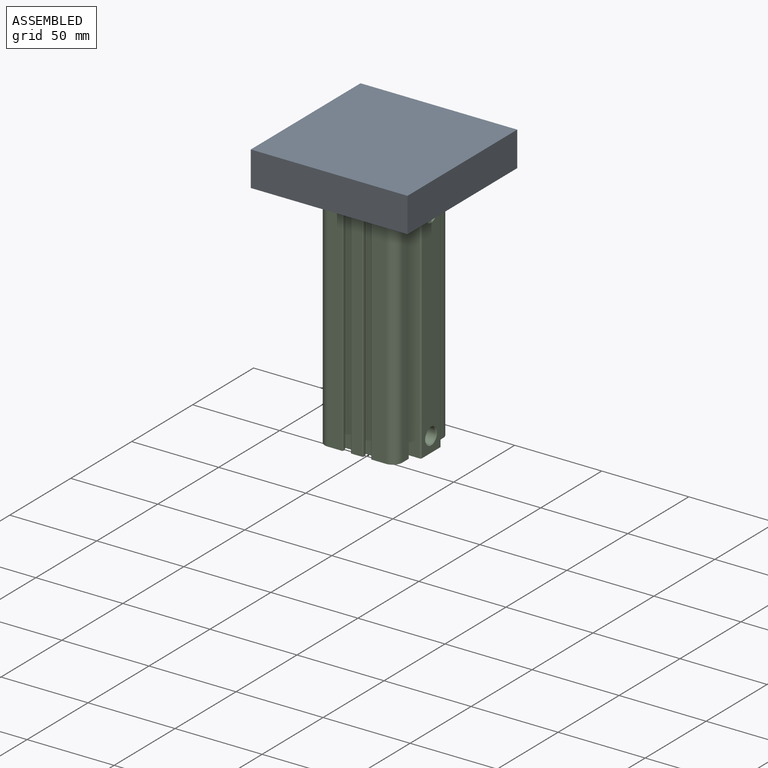
[diagram: assembled view]
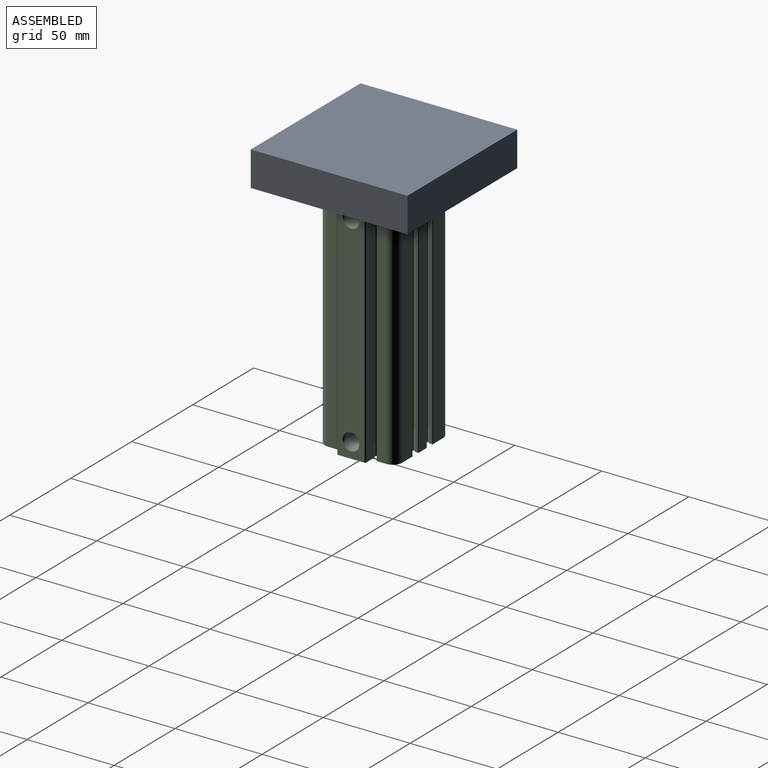
[diagram: assembled view, second angle]
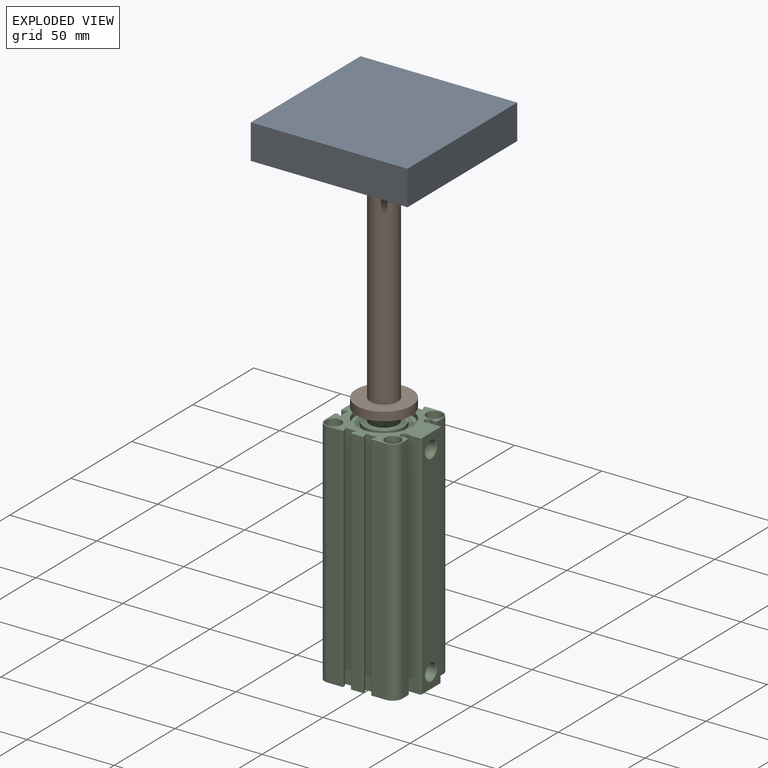
[diagram: exploded view]
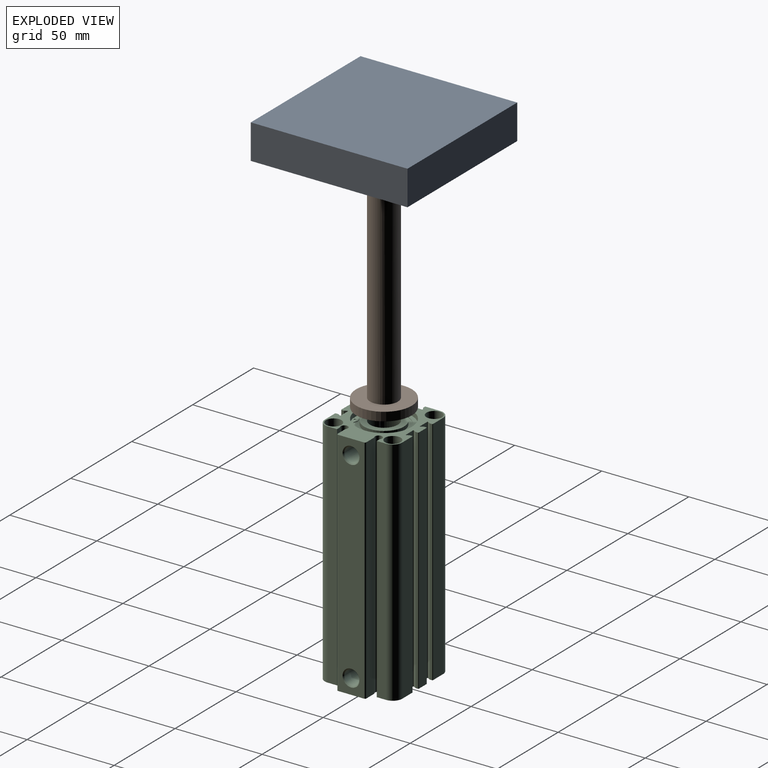
[diagram: exploded view, second angle]
ASSEMBLY  parts=3 mates=2
PART A: 16 faces, bbox 20x90x90 mm
  f0: plane 90x90mm, normal (1,0,0), area 7902.7mm2, adj f1,f2,f3,f4,f6,f7,f10,f12
  f1: plane 90x20mm, normal (0,0,1), area 1800mm2, adj f0,f2,f3,f5
  f2: plane 90x20mm, normal (0,-1,0), area 1800mm2, adj f0,f1,f4,f5
  f3: plane 90x20mm, normal (0,1,0), area 1800mm2, adj f0,f1,f4,f5
  f4: plane 90x20mm, normal (0,0,-1), area 1800mm2, adj f0,f2,f3,f5
  f5: plane 90x90mm, normal (-1,0,0), area 8100mm2, adj f1,f2,f3,f4
  f6: cylinder r=8mm len=15mm, axis (1,0,0), area 121.3mm2, adj f0,f9,f10,f11,f12,f13
  f7: cylinder r=8mm len=15mm, axis (1,0,0), area 121.3mm2, adj f0,f9,f10,f11,f12,f13
  f8: cylinder r=3.32mm len=6.65mm, axis (1,0,0), area 134.1mm2, adj f14,f15
  f9: plane 16x14mm, normal (1,0,0), area 140.3mm2, adj f6,f7,f11,f13,f14
  f10: cylinder r=0.5mm len=7.75mm, axis (0,-1,0), area 5.5mm2, adj f0,f6,f7,f11
  f11: plane 7.75x6.6mm, normal (0,0,1), area 51.1mm2, adj f6,f7,f9,f10
  f12: cylinder r=0.5mm len=7.75mm, axis (0,-1,0), area 5.5mm2, adj f0,f6,f7,f13
  f13: plane 7.75x6.6mm, normal (0,0,-1), area 51.1mm2, adj f6,f7,f9,f12
  f14: cone r=4mm half-angle=45deg, axis (-1,0,0), area 22mm2, adj f8,f9
  f15: plane 6.65x6.65mm, normal (1,0,0), area 34.7mm2, adj f8
PART B: 14 faces, bbox 126x32x32 mm
  f0: plane 16x14mm, normal (-1,0,0), area 140.3mm2, adj f1,f7,f10,f11
  f1: cylinder r=8mm len=121mm, axis (1,0,0), area 5967.8mm2, adj f0,f2,f5,f6,f7,f8,f9,f10
  f2: plane 32x32mm, normal (-1,0,0), area 603.2mm2, adj f1,f3
  f3: cylinder r=16mm len=32mm, axis (1,0,0), area 502.7mm2, adj f2,f4
  f4: plane 32x32mm, normal (1,0,0), area 804.2mm2, adj f3
  f5: plane 5.57x0.5mm, normal (-1,0,0), area 1.9mm2, adj f1,f6
  f6: cylinder r=0.5mm len=7.75mm, axis (0,-1,0), area 5.5mm2, adj f1,f5,f7
  f7: plane 7.75x6.6mm, normal (0,0,-1), area 51.1mm2, adj f0,f1,f6
  f8: plane 5.57x0.5mm, normal (-1,0,0), area 1.9mm2, adj f1,f9
  f9: cylinder r=0.5mm len=7.75mm, axis (0,-1,0), area 5.5mm2, adj f1,f8,f10
  f10: plane 7.75x6.6mm, normal (0,0,1), area 51.1mm2, adj f0,f1,f9
  f11: cone r=4mm half-angle=45deg, axis (-1,0,0), area 22mm2, adj f0,f12
  f12: cylinder r=3.32mm len=13.72mm, axis (1,0,0), area 286.6mm2, adj f11,f13
  f13: cone r=3.32mm half-angle=60deg, axis (-1,0,0), area 40.1mm2, adj f12
PART C: 166 faces, bbox 49.3x44.5x133 mm
  f0: cylinder r=4.28mm len=13.67mm, axis (1,0,0), area 367.1mm2, adj f162,f163,f165
  f1: cylinder r=4.28mm len=13.67mm, axis (1,0,0), area 367.1mm2, adj f160,f161,f164
  f2: cylinder r=16mm len=32mm, axis (0,0,-1), area 277.9mm2, adj f82,f83,f104,f105,f106
  f3: cylinder r=5.51mm len=133mm, axis (0,0,1), area 1151.1mm2, adj f4,f80,f81,f82
  f4: plane 133x8.26mm, normal (-1,0,0), area 1098.6mm2, adj f3,f5,f81,f82
  f5: cylinder r=0.38mm len=133mm, axis (0,0,1), area 79.4mm2, adj f4,f6,f81,f82
  f6: plane 133x1.3mm, normal (0,-1,0), area 172.9mm2, adj f5,f7,f81,f82
  f7: plane 133x1.53mm, normal (0.5,-0.87,0), area 234.2mm2, adj f6,f8,f81,f82
  f8: cylinder r=0.25mm len=133mm, axis (0,0,1), area 69.6mm2, adj f7,f9,f81,f82
  f9: plane 133x5.9mm, normal (-1,0,0), area 784.4mm2, adj f8,f10,f81,f82
  f10: cylinder r=0.25mm len=133mm, axis (0,0,1), area 69.6mm2, adj f9,f11,f81,f82
  f11: plane 133x1.53mm, normal (0.5,0.87,0), area 234.2mm2, adj f10,f12,f81,f82
  f12: plane 133x1.3mm, normal (0,1,0), area 172.9mm2, adj f11,f13,f81,f82
  f13: cylinder r=0.38mm len=133mm, axis (0,0,1), area 79.4mm2, adj f12,f14,f81,f82
  f14: plane 133x6.3mm, normal (-1,0,0), area 837.9mm2, adj f13,f15,f81,f82
  f15: cylinder r=0.38mm len=133mm, axis (0,0,1), area 79.4mm2, adj f14,f16,f81,f82
  f16: plane 133x1.3mm, normal (0,-1,0), area 172.9mm2, adj f15,f17,f81,f82
  f17: plane 133x1.53mm, normal (0.5,-0.87,0), area 234.2mm2, adj f16,f18,f81,f82
  f18: cylinder r=0.25mm len=133mm, axis (0,0,1), area 69.6mm2, adj f17,f19,f81,f82
  f19: plane 133x5.9mm, normal (-1,0,0), area 784.4mm2, adj f18,f20,f81,f82
  f20: cylinder r=0.25mm len=133mm, axis (0,0,1), area 69.6mm2, adj f19,f21,f81,f82
  f21: plane 133x1.53mm, normal (0.5,0.87,0), area 234.2mm2, adj f20,f22,f81,f82
  f22: plane 133x1.3mm, normal (0,1,0), area 172.9mm2, adj f21,f23,f81,f82
  f23: cylinder r=0.38mm len=133mm, axis (0,0,1), area 79.4mm2, adj f22,f24,f81,f82
  f24: plane 133x8.26mm, normal (-1,0,0), area 1098.6mm2, adj f23,f25,f81,f82
  f25: cylinder r=5.51mm len=133mm, axis (0,0,1), area 1151.1mm2, adj f24,f26,f81,f82
  f26: plane 133x8.26mm, normal (0,-1,0), area 1098.6mm2, adj f25,f27,f81,f82
  f27: cylinder r=0.38mm len=133mm, axis (0,0,1), area 79.4mm2, adj f26,f28,f81,f82
  f28: plane 133x1.3mm, normal (1,0,0), area 172.9mm2, adj f27,f29,f81,f82
  f29: plane 133x1.53mm, normal (0.87,0.5,0), area 234.2mm2, adj f28,f30,f81,f82
  f30: cylinder r=0.25mm len=133mm, axis (0,0,1), area 69.6mm2, adj f29,f31,f81,f82
  f31: plane 133x5.9mm, normal (0,-1,0), area 784.4mm2, adj f30,f32,f81,f82
  f32: cylinder r=0.25mm len=133mm, axis (0,0,1), area 69.6mm2, adj f31,f33,f81,f82
  f33: plane 133x1.53mm, normal (-0.87,0.5,0), area 234.2mm2, adj f32,f34,f81,f82
  f34: plane 133x1.3mm, normal (-1,0,0), area 172.9mm2, adj f33,f35,f81,f82
  f35: cylinder r=0.38mm len=133mm, axis (0,0,1), area 79.4mm2, adj f34,f36,f81,f82
  f36: plane 133x6.3mm, normal (0,-1,0), area 837.9mm2, adj f35,f37,f81,f82
  f37: cylinder r=0.38mm len=133mm, axis (0,0,1), area 79.4mm2, adj f36,f38,f81,f82
  f38: plane 133x1.3mm, normal (1,0,0), area 172.9mm2, adj f37,f39,f81,f82
  f39: plane 133x1.53mm, normal (0.87,0.5,0), area 234.2mm2, adj f38,f40,f81,f82
  f40: cylinder r=0.25mm len=133mm, axis (0,0,1), area 69.6mm2, adj f39,f41,f81,f82
  f41: plane 133x5.9mm, normal (0,-1,0), area 784.4mm2, adj f40,f42,f81,f82
  f42: cylinder r=0.25mm len=133mm, axis (0,0,1), area 69.6mm2, adj f41,f43,f81,f82
  f43: plane 133x1.53mm, normal (-0.87,0.5,0), area 234.2mm2, adj f42,f44,f81,f82
  f44: plane 133x1.3mm, normal (-1,0,0), area 172.9mm2, adj f43,f45,f81,f82
  f45: cylinder r=0.38mm len=133mm, axis (0,0,1), area 79.4mm2, adj f44,f46,f81,f82
  f46: plane 133x8.26mm, normal (0,-1,0), area 1098.6mm2, adj f45,f47,f81,f82
  f47: cylinder r=5.51mm len=133mm, axis (0,0,1), area 1151.1mm2, adj f46,f48,f81,f82
  f48: plane 133x5.31mm, normal (1,0,0), area 705.6mm2, adj f47,f49,f81,f82
  f49: plane 133x2.46mm, normal (0,1,0), area 327mm2, adj f48,f50,f81,f82
  f50: cylinder r=2.07mm len=133mm, axis (0,0,1), area 1247.5mm2, adj f49,f51,f81,f82
  f51: plane 133x6.48mm, normal (0,-1,0), area 861.9mm2, adj f50,f52,f81,f82
  f52: cylinder r=0.79mm len=133mm, axis (0,0,1), area 165mm2, adj f51,f53,f81,f82
  f53: plane 133x14.93mm, normal (1,0,0), area 1837mm2, adj f52,f54,f81,f82,f161,f163
  f54: cylinder r=0.79mm len=133mm, axis (0,0,1), area 165mm2, adj f53,f55,f81,f82
  f55: plane 133x6.48mm, normal (0,1,0), area 861.9mm2, adj f54,f56,f81,f82
  f56: cylinder r=2.07mm len=133mm, axis (0,0,1), area 1247.5mm2, adj f55,f57,f81,f82
  f57: plane 133x2.46mm, normal (0,-1,0), area 327mm2, adj f56,f58,f81,f82
  f58: plane 133x5.31mm, normal (1,0,0), area 705.6mm2, adj f57,f59,f81,f82
  f59: cylinder r=5.51mm len=133mm, axis (0,0,1), area 1151.1mm2, adj f58,f60,f81,f82
  f60: plane 133x8.26mm, normal (0,1,0), area 1098.6mm2, adj f59,f61,f81,f82
  f61: cylinder r=0.38mm len=133mm, axis (0,0,1), area 79.4mm2, adj f60,f62,f81,f82
  f62: plane 133x1.3mm, normal (-1,0,0), area 172.9mm2, adj f61,f63,f81,f82
  f63: plane 133x1.53mm, normal (-0.87,-0.5,0), area 234.2mm2, adj f62,f64,f81,f82
  f64: cylinder r=0.25mm len=133mm, axis (0,0,1), area 69.6mm2, adj f63,f65,f81,f82
  f65: plane 133x5.9mm, normal (0,1,0), area 784.4mm2, adj f64,f66,f81,f82
  f66: cylinder r=0.25mm len=133mm, axis (0,0,1), area 69.6mm2, adj f65,f67,f81,f82
  f67: plane 133x1.53mm, normal (0.87,-0.5,0), area 234.2mm2, adj f66,f68,f81,f82
  f68: plane 133x1.3mm, normal (1,0,0), area 172.9mm2, adj f67,f69,f81,f82
  f69: cylinder r=0.38mm len=133mm, axis (0,0,1), area 79.4mm2, adj f68,f70,f81,f82
  f70: plane 133x6.3mm, normal (0,1,0), area 837.9mm2, adj f69,f71,f81,f82
  f71: cylinder r=0.38mm len=133mm, axis (0,0,1), area 79.4mm2, adj f70,f72,f81,f82
  f72: plane 133x1.3mm, normal (-1,0,0), area 172.9mm2, adj f71,f73,f81,f82
  f73: plane 133x1.53mm, normal (-0.87,-0.5,0), area 234.2mm2, adj f72,f74,f81,f82
  f74: cylinder r=0.25mm len=133mm, axis (0,0,1), area 69.6mm2, adj f73,f75,f81,f82
  f75: plane 133x5.9mm, normal (0,1,0), area 784.4mm2, adj f74,f76,f81,f82
  f76: cylinder r=0.25mm len=133mm, axis (0,0,1), area 69.6mm2, adj f75,f77,f81,f82
  f77: plane 133x1.53mm, normal (0.87,-0.5,0), area 234.2mm2, adj f76,f78,f81,f82
  f78: plane 133x1.3mm, normal (1,0,0), area 172.9mm2, adj f77,f79,f81,f82
  f79: cylinder r=0.38mm len=133mm, axis (0,0,1), area 79.4mm2, adj f78,f80,f81,f82
  f80: plane 133x8.26mm, normal (0,1,0), area 1098.6mm2, adj f3,f79,f81,f82
  f81: plane 49.3x44.5mm, normal (0,0,-1), area 824.6mm2, adj f3,f4,f5,f6,f7,f8,f9,f10
  f82: plane 49.3x44.5mm, normal (0,0,1), area 824.6mm2, adj f2,f3,f4,f5,f6,f7,f8,f9
  f83: plane 29.47x28mm, normal (0,0,1), area 196.7mm2, adj f2,f84,f105,f106,f107,f108,f109,f110
  f84: cylinder r=11.5mm len=23mm, axis (0,0,-1), area 144.5mm2, adj f83,f85
  f85: plane 23x23mm, normal (0,0,1), area 214.4mm2, adj f84,f86
  f86: cylinder r=8mm len=16mm, axis (0,0,-1), area 653.5mm2, adj f85,f87
  f87: plane 32x32mm, normal (0,0,-1), area 602.4mm2, adj f86,f88,f164
  f88: cylinder r=16mm len=105mm, axis (0,0,-1), area 10555.8mm2, adj f87,f89
  f89: plane 32x32mm, normal (0,0,1), area 803.5mm2, adj f88,f165
  f90: plane 29.47x28mm, normal (0,0,-1), area 612.2mm2, adj f91,f93,f94,f95,f96,f97,f98,f101
  f91: cylinder r=16mm len=32mm, axis (0,0,-1), area 277.9mm2, adj f81,f90,f92,f93,f94
  f92: plane 32x31.76mm, normal (0,0,-1), area 189.5mm2, adj f91,f93,f94,f95,f96,f97,f98,f99
  f93: plane 3.15x0.56mm, normal (-0.98,-0.17,0), area 0.8mm2, adj f90,f91,f92,f101
  f94: plane 3.15x0.56mm, normal (0.98,-0.17,0), area 0.8mm2, adj f90,f91,f92,f95
  f95: cylinder r=12.8mm len=2.16mm, axis (0,0,1), area 0.6mm2, adj f90,f92,f94,f96
  f96: plane 2.27x0.83mm, normal (-0.34,0.94,0), area 0.6mm2, adj f90,f92,f95,f97
  f97: cylinder r=14mm len=28mm, axis (0,0,1), area 18.5mm2, adj f90,f92,f96,f98
  f98: plane 2.27x0.83mm, normal (0.34,0.94,0), area 0.6mm2, adj f90,f92,f97,f101
  f99: cylinder r=0.64mm len=1.28mm, axis (0,0,1), area 1mm2, adj f92,f103
  f100: cylinder r=0.64mm len=1.28mm, axis (0,0,1), area 1mm2, adj f92,f102
  f101: cylinder r=12.8mm len=2.16mm, axis (0,0,1), area 0.6mm2, adj f90,f92,f93,f98
  f102: plane 1.28x1.28mm, normal (0,0,-1), area 1.3mm2, adj f100
  f103: plane 1.28x1.28mm, normal (0,0,-1), area 1.3mm2, adj f99
  f104: plane 32x31.76mm, normal (0,0,1), area 189.5mm2, adj f2,f105,f106,f107,f108,f109,f110,f111
  f105: plane 3.15x0.56mm, normal (-0.98,-0.17,0), area 0.8mm2, adj f2,f83,f104,f113
  f106: plane 3.15x0.56mm, normal (0.98,-0.17,0), area 0.8mm2, adj f2,f83,f104,f107
  f107: cylinder r=12.8mm len=2.16mm, axis (0,0,-1), area 0.6mm2, adj f83,f104,f106,f108
  f108: plane 2.27x0.83mm, normal (-0.34,0.94,0), area 0.6mm2, adj f83,f104,f107,f109
  f109: cylinder r=14mm len=28mm, axis (0,0,-1), area 18.5mm2, adj f83,f104,f108,f110
  f110: plane 2.27x0.83mm, normal (0.34,0.94,0), area 0.6mm2, adj f83,f104,f109,f113
  f111: cylinder r=0.64mm len=1.28mm, axis (0,0,-1), area 1mm2, adj f104,f115
  f112: cylinder r=0.64mm len=1.28mm, axis (0,0,-1), area 1mm2, adj f104,f114
  f113: cylinder r=12.8mm len=2.16mm, axis (0,0,-1), area 0.6mm2, adj f83,f104,f105,f110
  f114: plane 1.28x1.28mm, normal (0,0,1), area 1.3mm2, adj f112
  f115: plane 1.28x1.28mm, normal (0,0,1), area 1.3mm2, adj f111
  f116: cylinder r=4.5mm len=9mm, axis (0,0,1), area 197.9mm2, adj f81,f117
  f117: plane 9x9mm, normal (0,0,-1), area 35.3mm2, adj f116,f118
  f118: cone r=3mm half-angle=45deg, axis (0,0,-1), area 13.1mm2, adj f117,f119
  f119: cylinder r=2.46mm len=9.54mm, axis (0,0,1), area 147.4mm2, adj f118,f120
  f120: plane 4.92x4.92mm, normal (0,0,-1), area 0.8mm2, adj f119,f121
  f121: cylinder r=2.41mm len=98.83mm, axis (0,0,1), area 1496.1mm2, adj f120,f122
  f122: plane 4.92x4.92mm, normal (0,0,1), area 0.8mm2, adj f121,f123
  f123: cylinder r=2.46mm len=9.54mm, axis (0,0,1), area 147.4mm2, adj f122,f124
  f124: cone r=2.46mm half-angle=45deg, axis (0,0,1), area 13.1mm2, adj f123,f125
  f125: plane 9x9mm, normal (0,0,1), area 35.3mm2, adj f124,f126
  f126: cylinder r=4.5mm len=9mm, axis (0,0,1), area 197.9mm2, adj f82,f125
  f127: cylinder r=4.5mm len=9mm, axis (0,0,-1), area 197.9mm2, adj f82,f128
  f128: plane 9x9mm, normal (0,0,1), area 35.3mm2, adj f127,f129
  f129: cone r=3mm half-angle=45deg, axis (0,0,1), area 13.1mm2, adj f128,f130
  f130: cylinder r=2.46mm len=9.54mm, axis (0,0,-1), area 147.4mm2, adj f129,f131
  f131: plane 4.92x4.92mm, normal (0,0,1), area 0.8mm2, adj f130,f132
  f132: cylinder r=2.41mm len=98.83mm, axis (0,0,-1), area 1496.1mm2, adj f131,f133
  f133: plane 4.92x4.92mm, normal (0,0,-1), area 0.8mm2, adj f132,f134
  f134: cylinder r=2.46mm len=9.54mm, axis (0,0,-1), area 147.4mm2, adj f133,f135
  f135: cone r=2.46mm half-angle=45deg, axis (0,0,-1), area 13.1mm2, adj f134,f136
  f136: plane 9x9mm, normal (0,0,-1), area 35.3mm2, adj f135,f137
  f137: cylinder r=4.5mm len=9mm, axis (0,0,-1), area 197.9mm2, adj f81,f136
  f138: cylinder r=4.5mm len=9mm, axis (0,0,-1), area 197.9mm2, adj f82,f139
  f139: plane 9x9mm, normal (0,0,1), area 35.3mm2, adj f138,f140
  f140: cone r=3mm half-angle=45deg, axis (0,0,1), area 13.1mm2, adj f139,f141
  f141: cylinder r=2.46mm len=9.54mm, axis (0,0,-1), area 147.4mm2, adj f140,f142
  f142: plane 4.92x4.92mm, normal (0,0,1), area 0.8mm2, adj f141,f143
  f143: cylinder r=2.41mm len=98.83mm, axis (0,0,-1), area 1496.1mm2, adj f142,f144
  f144: plane 4.92x4.92mm, normal (0,0,-1), area 0.8mm2, adj f143,f145
  f145: cylinder r=2.46mm len=9.54mm, axis (0,0,-1), area 147.4mm2, adj f144,f146
  f146: cone r=2.46mm half-angle=45deg, axis (0,0,-1), area 13.1mm2, adj f145,f147
  f147: plane 9x9mm, normal (0,0,-1), area 35.3mm2, adj f146,f148
  f148: cylinder r=4.5mm len=9mm, axis (0,0,-1), area 197.9mm2, adj f81,f147
  f149: cylinder r=4.5mm len=9mm, axis (0,0,1), area 197.9mm2, adj f81,f150
  f150: plane 9x9mm, normal (0,0,-1), area 35.3mm2, adj f149,f151
  f151: cone r=3mm half-angle=45deg, axis (0,0,-1), area 13.1mm2, adj f150,f152
  f152: cylinder r=2.46mm len=9.54mm, axis (0,0,1), area 147.4mm2, adj f151,f153
  f153: plane 4.92x4.92mm, normal (0,0,-1), area 0.8mm2, adj f152,f154
  f154: cylinder r=2.41mm len=98.83mm, axis (0,0,1), area 1496.1mm2, adj f153,f155
  f155: plane 4.92x4.92mm, normal (0,0,1), area 0.8mm2, adj f154,f156
  f156: cylinder r=2.46mm len=9.54mm, axis (0,0,1), area 147.4mm2, adj f155,f157
  f157: cone r=2.46mm half-angle=45deg, axis (0,0,1), area 13.1mm2, adj f156,f158
  f158: plane 9x9mm, normal (0,0,1), area 35.3mm2, adj f157,f159
  f159: cylinder r=4.5mm len=9mm, axis (0,0,1), area 197.9mm2, adj f82,f158
  f160: cone r=0mm half-angle=60deg, axis (1,0,0), area 66.5mm2, adj f1
  f161: cone r=4.28mm half-angle=45deg, axis (1,0,0), area 23.6mm2, adj f1,f53
  f162: cone r=0mm half-angle=60deg, axis (1,0,0), area 66.5mm2, adj f0
  f163: cone r=4.28mm half-angle=45deg, axis (1,0,0), area 23.6mm2, adj f0,f53
  f164: cylinder r=0.5mm len=1.05mm, axis (0,0,1), area 3.2mm2, adj f1,f87
  f165: cylinder r=0.5mm len=1.05mm, axis (0,0,1), area 3.2mm2, adj f0,f89
PLACE A rot(axis=(-0.58,0.58,0.58),120deg) t=(0,0,2.5)mm
PLACE B rot(axis=(-0.58,0.58,0.58),120deg) t=(0,0,2.5)mm
PLACE C at identity fixed
MATE cylindrical C.f2 <-> B.f1  axis (0,0,-1) through (0,0,-14)mm
MATE slider A.f6 <-> B.f1  axis (0,0,-1) through (0,0,9.5)mm
